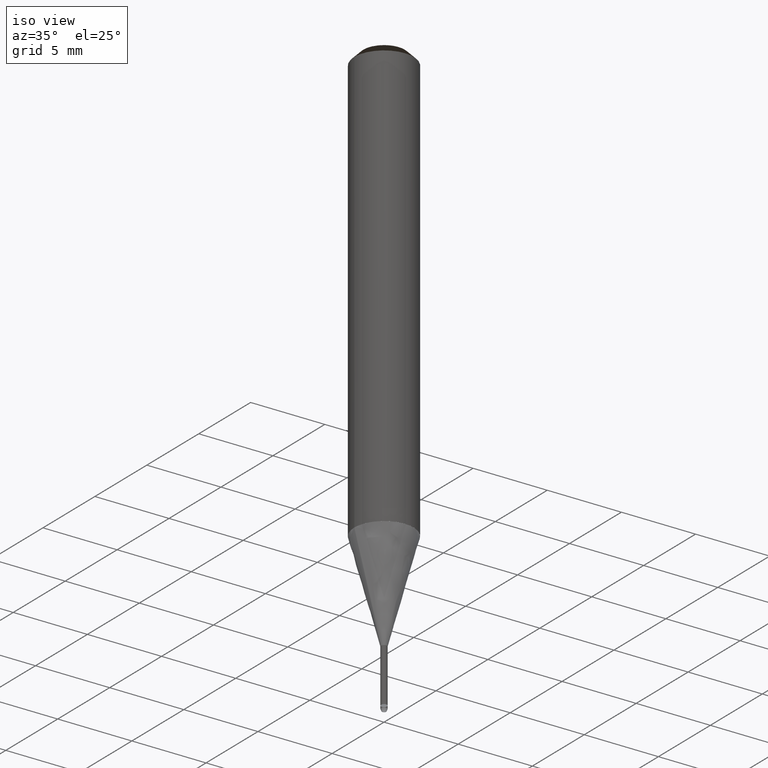
[diagram: clean part render]
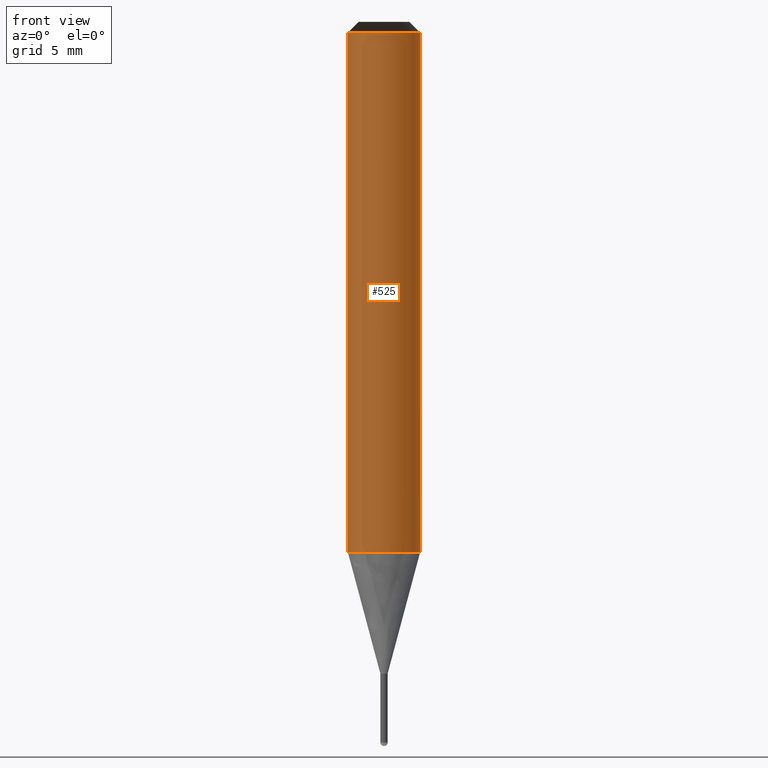
[diagram: tour spotlight — one face highlighted and labeled with its STEP entity id]
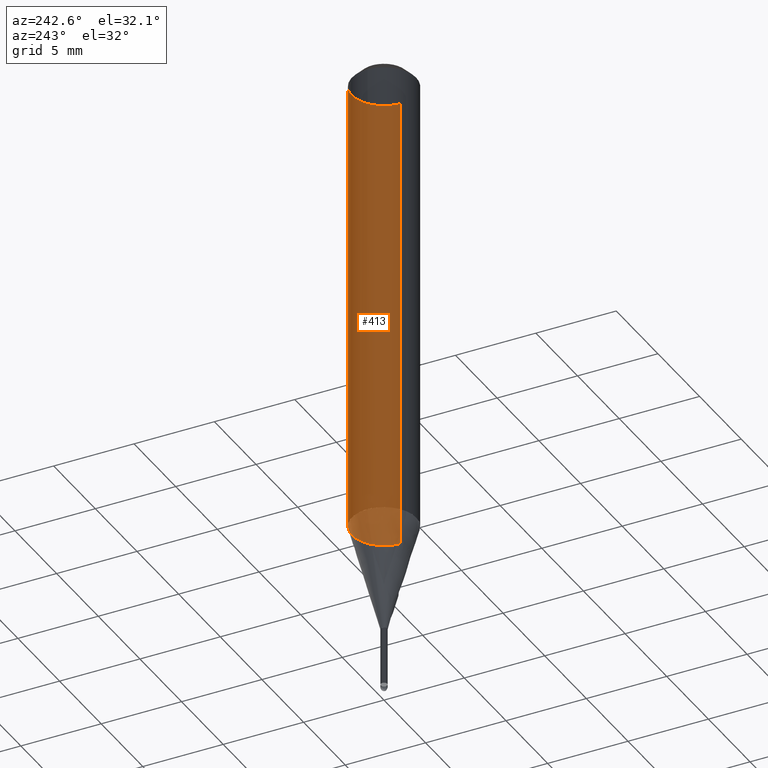
[diagram: tour spotlight — one face highlighted and labeled with its STEP entity id]
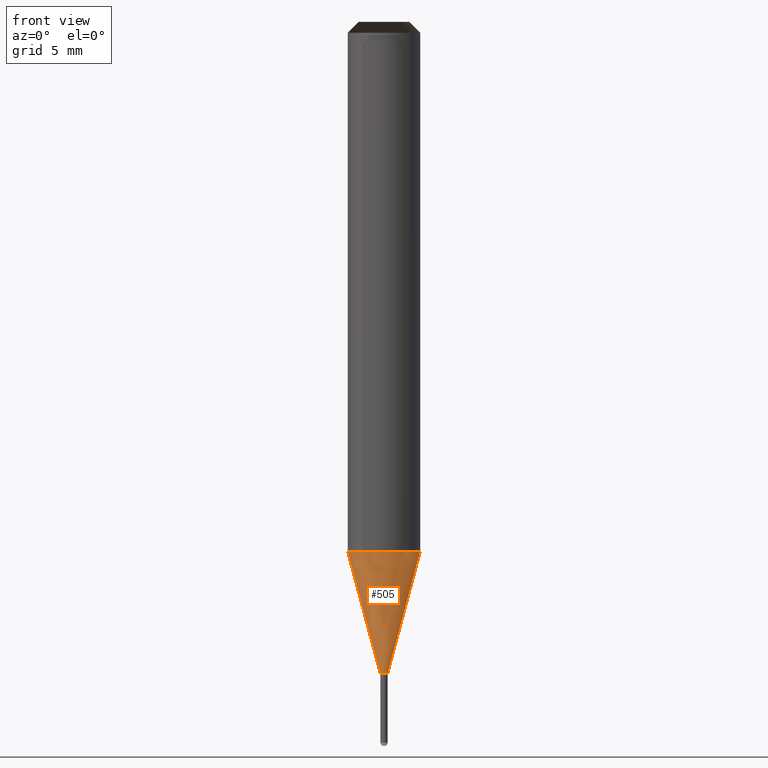
[diagram: tour spotlight — one face highlighted and labeled with its STEP entity id]
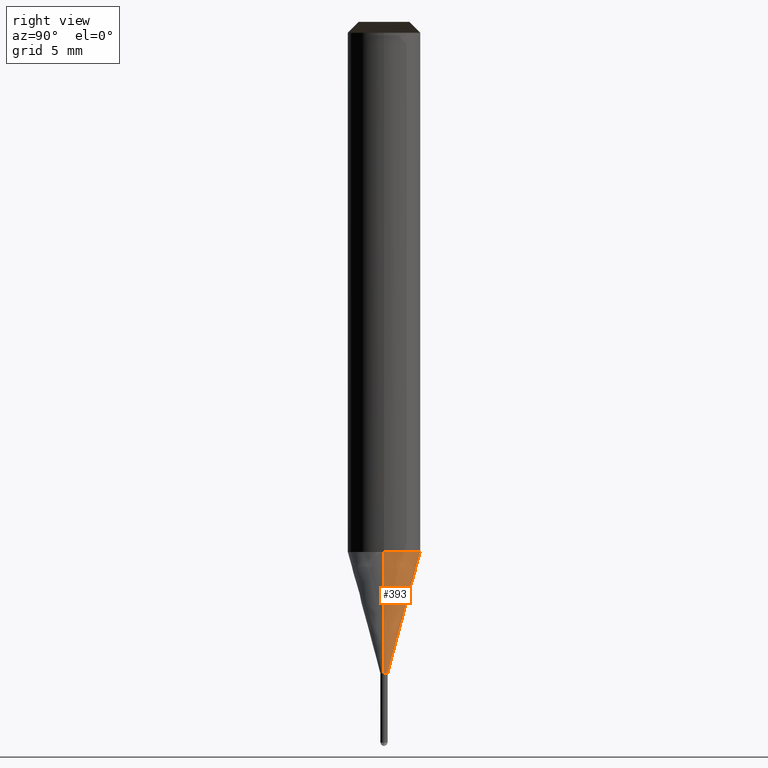
[diagram: tour spotlight — one face highlighted and labeled with its STEP entity id]
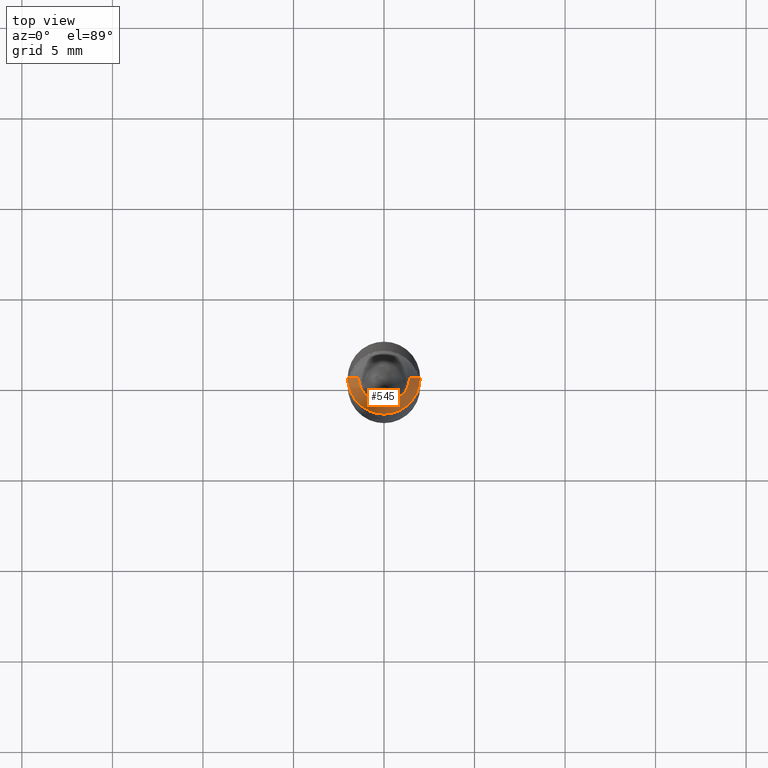
[diagram: tour spotlight — one face highlighted and labeled with its STEP entity id]
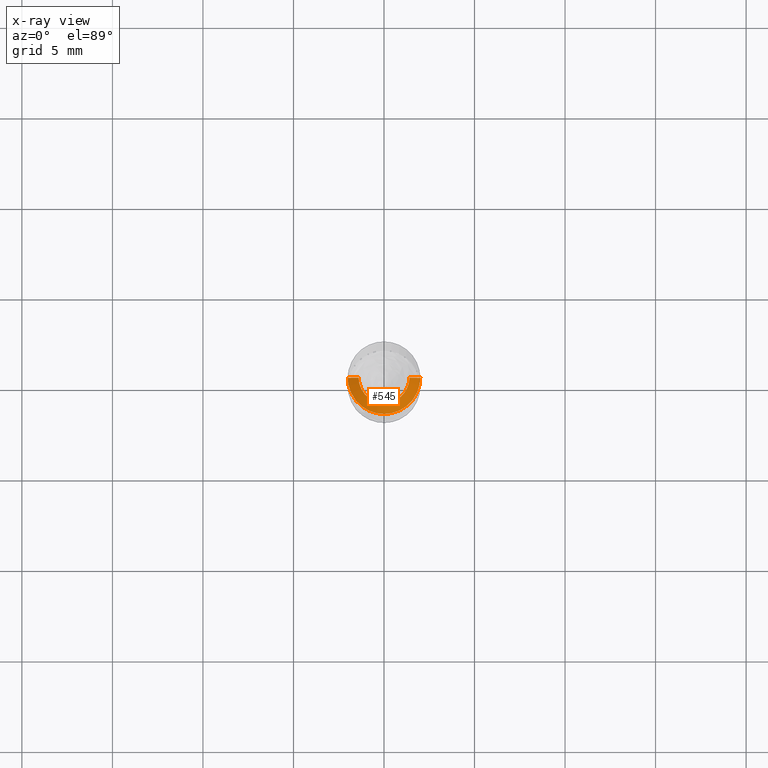
[diagram: x-ray of the same camera — body ghosted, this tour face saturated]
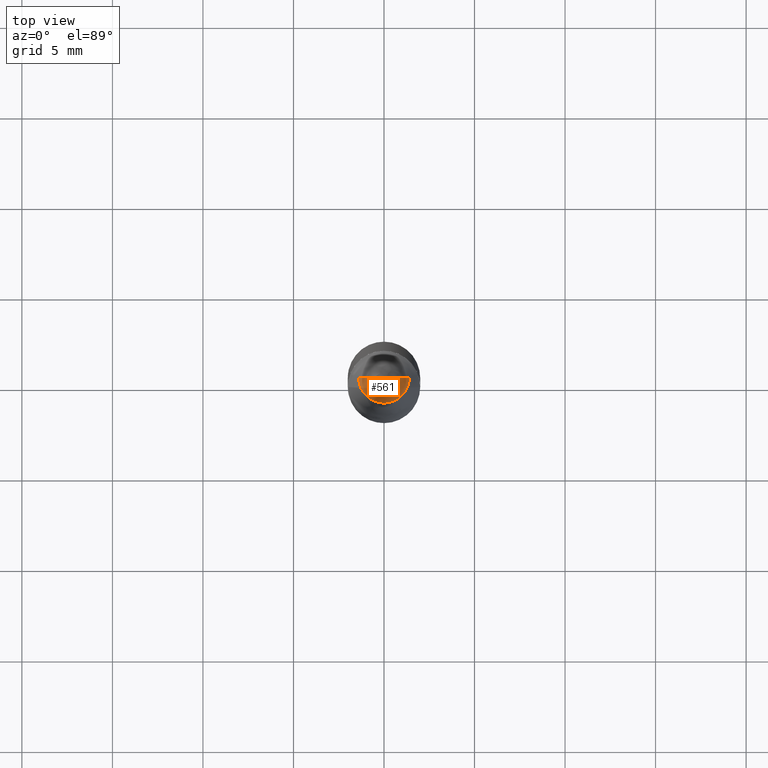
[diagram: tour spotlight — one face highlighted and labeled with its STEP entity id]
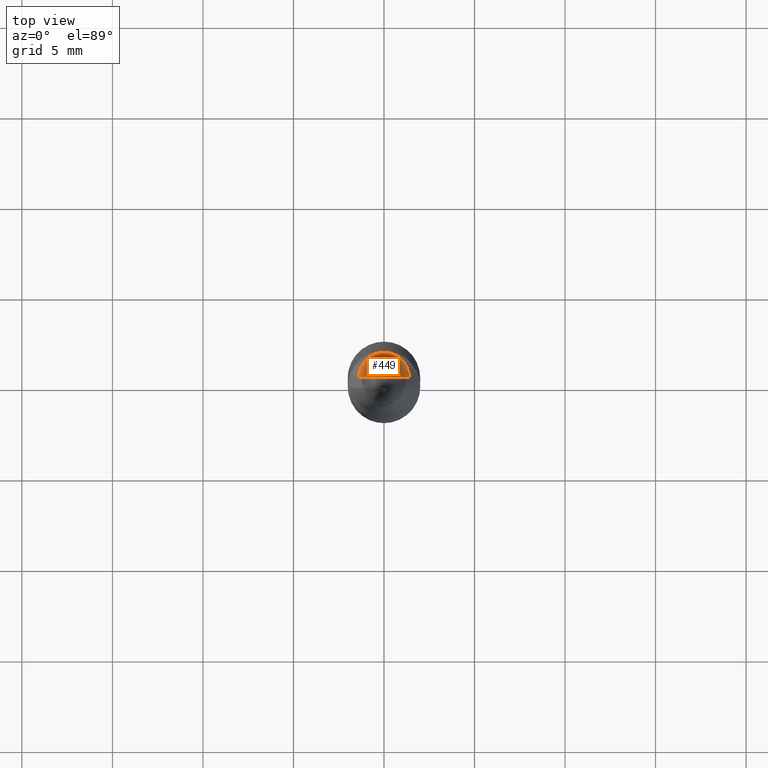
[diagram: tour spotlight — one face highlighted and labeled with its STEP entity id]
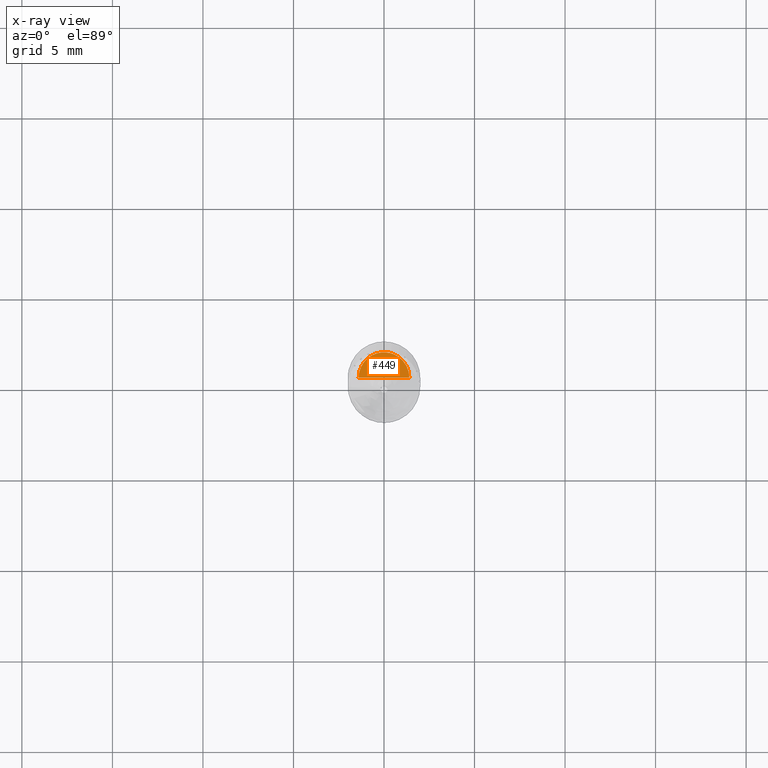
[diagram: x-ray of the same camera — body ghosted, this tour face saturated]
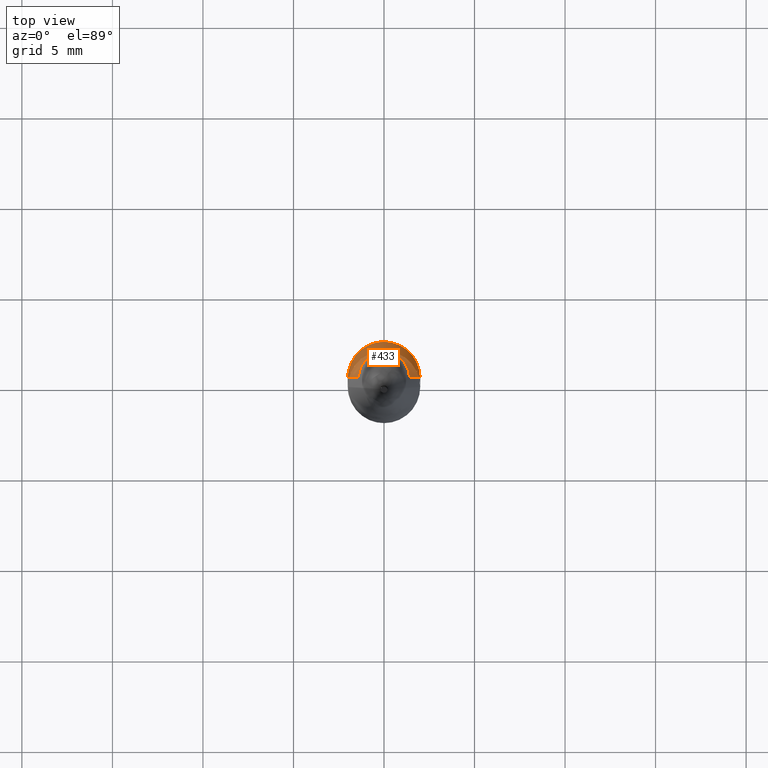
[diagram: tour spotlight — one face highlighted and labeled with its STEP entity id]
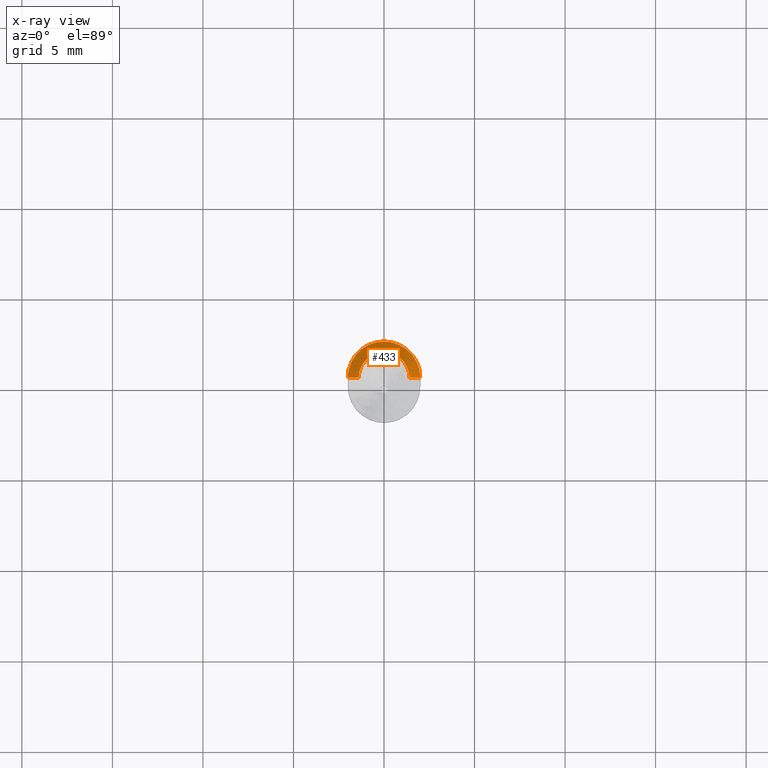
[diagram: x-ray of the same camera — body ghosted, this tour face saturated]
A machine part: a face-by-face anatomy tour. The part has 18 B-rep faces; the first image is the clean iso view, then the 8 largest visible faces are spotlighted one at a time (largest first), each with its STEP entity span.

Face 1 — front view, entity #525. In plain terms, the highlighted face is a freeform B-spline surface patch.
Definition (entity closure, byte-faithful):
#197=CARTESIAN_POINT('',(2.0,0.0,0.0));
#201=CARTESIAN_POINT('',(-2.0,0.0,0.0));
#202=CARTESIAN_POINT('',(2.0,0.0,28.68));
#206=CARTESIAN_POINT('',(-2.0,0.0,28.68));
#216=CARTESIAN_POINT('',(-2.0,-2.0,0.0));
#217=CARTESIAN_POINT('',(0.0,-2.0,0.0));
#218=CARTESIAN_POINT('',(2.0,-2.0,0.0));
#219=CARTESIAN_POINT('',(-2.0,-2.0,28.68));
#220=CARTESIAN_POINT('',(0.0,-2.0,28.68));
#221=CARTESIAN_POINT('',(2.0,-2.0,28.68));
#506=(
BOUNDED_SURFACE()
B_SPLINE_SURFACE(1,2,(
(#201,#216,#217,#218,#197),
(#206,#219,#220,#221,#202)
), .UNSPECIFIED.,.F.,.F.,.F.)
B_SPLINE_SURFACE_WITH_KNOTS((2,2),(3,2,3),(
0.0,1.0),(
0.0,0.5,1.0), .UNSPECIFIED.)
GEOMETRIC_REPRESENTATION_ITEM()
RATIONAL_B_SPLINE_SURFACE(((1.0,0.707106781187,1.0,0.707106781187,1.0),
(1.0,0.707106781187,1.0,0.707106781187,1.0)
))
REPRESENTATION_ITEM('')
SURFACE()
);
#507=(
BOUNDED_CURVE()
B_SPLINE_CURVE(1,(#206,#201),.UNSPECIFIED.,.F.,.F.)
B_SPLINE_CURVE_WITH_KNOTS((2,2),
(0.0,1.0),.UNSPECIFIED.)
CURVE()
GEOMETRIC_REPRESENTATION_ITEM()
RATIONAL_B_SPLINE_CURVE((1.0,1.0))
REPRESENTATION_ITEM('')
);
#508=(
BOUNDED_CURVE()
B_SPLINE_CURVE(2,(#201,#216,#217,#218,#197),.UNSPECIFIED.,.F.,.F.)
B_SPLINE_CURVE_WITH_KNOTS((3,2,3),
(0.0,0.5,1.0),.UNSPECIFIED.)
CURVE()
GEOMETRIC_REPRESENTATION_ITEM()
RATIONAL_B_SPLINE_CURVE((1.0,0.707106781187,1.0,0.707106781187,1.0))
REPRESENTATION_ITEM('')
);
#509=(
BOUNDED_CURVE()
B_SPLINE_CURVE(1,(#197,#202),.UNSPECIFIED.,.F.,.F.)
B_SPLINE_CURVE_WITH_KNOTS((2,2),
(0.0,1.0),.UNSPECIFIED.)
CURVE()
GEOMETRIC_REPRESENTATION_ITEM()
RATIONAL_B_SPLINE_CURVE((1.0,1.0))
REPRESENTATION_ITEM('')
);
#510=(
BOUNDED_CURVE()
B_SPLINE_CURVE(2,(#202,#221,#220,#219,#206),.UNSPECIFIED.,.F.,.F.)
B_SPLINE_CURVE_WITH_KNOTS((3,2,3),
(0.0,0.5,1.0),.UNSPECIFIED.)
CURVE()
GEOMETRIC_REPRESENTATION_ITEM()
RATIONAL_B_SPLINE_CURVE((1.0,0.707106781187,1.0,0.707106781187,1.0))
REPRESENTATION_ITEM('')
);
#511=VERTEX_POINT('',#197);
#512=VERTEX_POINT('',#201);
#513=VERTEX_POINT('',#202);
#514=VERTEX_POINT('',#206);
#515=EDGE_CURVE('',#514,#512,#507,.T.);
#516=EDGE_CURVE('',#512,#511,#508,.T.);
#517=EDGE_CURVE('',#511,#513,#509,.T.);
#518=EDGE_CURVE('',#513,#514,#510,.T.);
#519=ORIENTED_EDGE('',*,*,#515,.T.);
#520=ORIENTED_EDGE('',*,*,#516,.T.);
#521=ORIENTED_EDGE('',*,*,#517,.T.);
#522=ORIENTED_EDGE('',*,*,#518,.T.);
#523=EDGE_LOOP('',(#519,#520,#521,#522));
#524=FACE_OUTER_BOUND('',#523,.T.);
#525=ADVANCED_FACE('',(#524),#506,.T.);

Face 2 — auxiliary view, entity #413. In plain terms, the highlighted face is a freeform B-spline surface patch.
Definition (entity closure, byte-faithful):
#197=CARTESIAN_POINT('',(2.0,0.0,0.0));
#198=CARTESIAN_POINT('',(2.0,2.0,0.0));
#199=CARTESIAN_POINT('',(0.0,2.0,0.0));
#200=CARTESIAN_POINT('',(-2.0,2.0,0.0));
#201=CARTESIAN_POINT('',(-2.0,0.0,0.0));
#202=CARTESIAN_POINT('',(2.0,0.0,28.68));
#203=CARTESIAN_POINT('',(2.0,2.0,28.68));
#204=CARTESIAN_POINT('',(0.0,2.0,28.68));
#205=CARTESIAN_POINT('',(-2.0,2.0,28.68));
#206=CARTESIAN_POINT('',(-2.0,0.0,28.68));
#394=(
BOUNDED_SURFACE()
B_SPLINE_SURFACE(1,2,(
(#197,#198,#199,#200,#201),
(#202,#203,#204,#205,#206)
), .UNSPECIFIED.,.F.,.F.,.F.)
B_SPLINE_SURFACE_WITH_KNOTS((2,2),(3,2,3),(
0.0,1.0),(
0.0,0.5,1.0), .UNSPECIFIED.)
GEOMETRIC_REPRESENTATION_ITEM()
RATIONAL_B_SPLINE_SURFACE(((1.0,0.707106781187,1.0,0.707106781187,1.0),
(1.0,0.707106781187,1.0,0.707106781187,1.0)
))
REPRESENTATION_ITEM('')
SURFACE()
);
#395=(
BOUNDED_CURVE()
B_SPLINE_CURVE(2,(#202,#203,#204,#205,#206),.UNSPECIFIED.,.F.,.F.)
B_SPLINE_CURVE_WITH_KNOTS((3,2,3),
(0.0,0.5,1.0),.UNSPECIFIED.)
CURVE()
GEOMETRIC_REPRESENTATION_ITEM()
RATIONAL_B_SPLINE_CURVE((1.0,0.707106781187,1.0,0.707106781187,1.0))
REPRESENTATION_ITEM('')
);
#396=(
BOUNDED_CURVE()
B_SPLINE_CURVE(1,(#206,#201),.UNSPECIFIED.,.F.,.F.)
B_SPLINE_CURVE_WITH_KNOTS((2,2),
(0.0,1.0),.UNSPECIFIED.)
CURVE()
GEOMETRIC_REPRESENTATION_ITEM()
RATIONAL_B_SPLINE_CURVE((1.0,1.0))
REPRESENTATION_ITEM('')
);
#397=(
BOUNDED_CURVE()
B_SPLINE_CURVE(2,(#201,#200,#199,#198,#197),.UNSPECIFIED.,.F.,.F.)
B_SPLINE_CURVE_WITH_KNOTS((3,2,3),
(0.0,0.5,1.0),.UNSPECIFIED.)
CURVE()
GEOMETRIC_REPRESENTATION_ITEM()
RATIONAL_B_SPLINE_CURVE((1.0,0.707106781187,1.0,0.707106781187,1.0))
REPRESENTATION_ITEM('')
);
#398=(
BOUNDED_CURVE()
B_SPLINE_CURVE(1,(#197,#202),.UNSPECIFIED.,.F.,.F.)
B_SPLINE_CURVE_WITH_KNOTS((2,2),
(0.0,1.0),.UNSPECIFIED.)
CURVE()
GEOMETRIC_REPRESENTATION_ITEM()
RATIONAL_B_SPLINE_CURVE((1.0,1.0))
REPRESENTATION_ITEM('')
);
#399=VERTEX_POINT('',#197);
#400=VERTEX_POINT('',#201);
#401=VERTEX_POINT('',#202);
#402=VERTEX_POINT('',#206);
#403=EDGE_CURVE('',#401,#402,#395,.T.);
#404=EDGE_CURVE('',#402,#400,#396,.T.);
#405=EDGE_CURVE('',#400,#399,#397,.T.);
#406=EDGE_CURVE('',#399,#401,#398,.T.);
#407=ORIENTED_EDGE('',*,*,#403,.T.);
#408=ORIENTED_EDGE('',*,*,#404,.T.);
#409=ORIENTED_EDGE('',*,*,#405,.T.);
#410=ORIENTED_EDGE('',*,*,#406,.T.);
#411=EDGE_LOOP('',(#407,#408,#409,#410));
#412=FACE_OUTER_BOUND('',#411,.T.);
#413=ADVANCED_FACE('',(#412),#394,.T.);

Face 3 — front view, entity #505. In plain terms, the highlighted face is a freeform B-spline surface patch.
Definition (entity closure, byte-faithful):
#192=CARTESIAN_POINT('',(0.2,0.0,-6.717691453624));
#196=CARTESIAN_POINT('',(-0.2,0.0,-6.717691453624));
#197=CARTESIAN_POINT('',(2.0,0.0,0.0));
#201=CARTESIAN_POINT('',(-2.0,0.0,0.0));
#213=CARTESIAN_POINT('',(-0.2,-0.2,-6.717691453624));
#214=CARTESIAN_POINT('',(0.0,-0.2,-6.717691453624));
#215=CARTESIAN_POINT('',(0.2,-0.2,-6.717691453624));
#216=CARTESIAN_POINT('',(-2.0,-2.0,0.0));
#217=CARTESIAN_POINT('',(0.0,-2.0,0.0));
#218=CARTESIAN_POINT('',(2.0,-2.0,0.0));
#486=(
BOUNDED_SURFACE()
B_SPLINE_SURFACE(1,2,(
(#196,#213,#214,#215,#192),
(#201,#216,#217,#218,#197)
), .UNSPECIFIED.,.F.,.F.,.F.)
B_SPLINE_SURFACE_WITH_KNOTS((2,2),(3,2,3),(
0.0,1.0),(
0.0,0.5,1.0), .UNSPECIFIED.)
GEOMETRIC_REPRESENTATION_ITEM()
RATIONAL_B_SPLINE_SURFACE(((1.0,0.707106781187,1.0,0.707106781187,1.0),
(1.0,0.707106781187,1.0,0.707106781187,1.0)
))
REPRESENTATION_ITEM('')
SURFACE()
);
#487=(
BOUNDED_CURVE()
B_SPLINE_CURVE(1,(#201,#196),.UNSPECIFIED.,.F.,.F.)
B_SPLINE_CURVE_WITH_KNOTS((2,2),
(0.0,1.0),.UNSPECIFIED.)
CURVE()
GEOMETRIC_REPRESENTATION_ITEM()
RATIONAL_B_SPLINE_CURVE((1.0,1.0))
REPRESENTATION_ITEM('')
);
#488=(
BOUNDED_CURVE()
B_SPLINE_CURVE(2,(#196,#213,#214,#215,#192),.UNSPECIFIED.,.F.,.F.)
B_SPLINE_CURVE_WITH_KNOTS((3,2,3),
(0.0,0.5,1.0),.UNSPECIFIED.)
CURVE()
GEOMETRIC_REPRESENTATION_ITEM()
RATIONAL_B_SPLINE_CURVE((1.0,0.707106781187,1.0,0.707106781187,1.0))
REPRESENTATION_ITEM('')
);
#489=(
BOUNDED_CURVE()
B_SPLINE_CURVE(1,(#192,#197),.UNSPECIFIED.,.F.,.F.)
B_SPLINE_CURVE_WITH_KNOTS((2,2),
(0.0,1.0),.UNSPECIFIED.)
CURVE()
GEOMETRIC_REPRESENTATION_ITEM()
RATIONAL_B_SPLINE_CURVE((1.0,1.0))
REPRESENTATION_ITEM('')
);
#490=(
BOUNDED_CURVE()
B_SPLINE_CURVE(2,(#197,#218,#217,#216,#201),.UNSPECIFIED.,.F.,.F.)
B_SPLINE_CURVE_WITH_KNOTS((3,2,3),
(0.0,0.5,1.0),.UNSPECIFIED.)
CURVE()
GEOMETRIC_REPRESENTATION_ITEM()
RATIONAL_B_SPLINE_CURVE((1.0,0.707106781187,1.0,0.707106781187,1.0))
REPRESENTATION_ITEM('')
);
#491=VERTEX_POINT('',#192);
#492=VERTEX_POINT('',#196);
#493=VERTEX_POINT('',#197);
#494=VERTEX_POINT('',#201);
#495=EDGE_CURVE('',#494,#492,#487,.T.);
#496=EDGE_CURVE('',#492,#491,#488,.T.);
#497=EDGE_CURVE('',#491,#493,#489,.T.);
#498=EDGE_CURVE('',#493,#494,#490,.T.);
#499=ORIENTED_EDGE('',*,*,#495,.T.);
#500=ORIENTED_EDGE('',*,*,#496,.T.);
#501=ORIENTED_EDGE('',*,*,#497,.T.);
#502=ORIENTED_EDGE('',*,*,#498,.T.);
#503=EDGE_LOOP('',(#499,#500,#501,#502));
#504=FACE_OUTER_BOUND('',#503,.T.);
#505=ADVANCED_FACE('',(#504),#486,.T.);

Face 4 — right view, entity #393. In plain terms, the highlighted face is a freeform B-spline surface patch.
Definition (entity closure, byte-faithful):
#192=CARTESIAN_POINT('',(0.2,0.0,-6.717691453624));
#193=CARTESIAN_POINT('',(0.2,0.2,-6.717691453624));
#194=CARTESIAN_POINT('',(0.0,0.2,-6.717691453624));
#195=CARTESIAN_POINT('',(-0.2,0.2,-6.717691453624));
#196=CARTESIAN_POINT('',(-0.2,0.0,-6.717691453624));
#197=CARTESIAN_POINT('',(2.0,0.0,0.0));
#198=CARTESIAN_POINT('',(2.0,2.0,0.0));
#199=CARTESIAN_POINT('',(0.0,2.0,0.0));
#200=CARTESIAN_POINT('',(-2.0,2.0,0.0));
#201=CARTESIAN_POINT('',(-2.0,0.0,0.0));
#374=(
BOUNDED_SURFACE()
B_SPLINE_SURFACE(1,2,(
(#192,#193,#194,#195,#196),
(#197,#198,#199,#200,#201)
), .UNSPECIFIED.,.F.,.F.,.F.)
B_SPLINE_SURFACE_WITH_KNOTS((2,2),(3,2,3),(
0.0,1.0),(
0.0,0.5,1.0), .UNSPECIFIED.)
GEOMETRIC_REPRESENTATION_ITEM()
RATIONAL_B_SPLINE_SURFACE(((1.0,0.707106781187,1.0,0.707106781187,1.0),
(1.0,0.707106781187,1.0,0.707106781187,1.0)
))
REPRESENTATION_ITEM('')
SURFACE()
);
#375=(
BOUNDED_CURVE()
B_SPLINE_CURVE(2,(#197,#198,#199,#200,#201),.UNSPECIFIED.,.F.,.F.)
B_SPLINE_CURVE_WITH_KNOTS((3,2,3),
(0.0,0.5,1.0),.UNSPECIFIED.)
CURVE()
GEOMETRIC_REPRESENTATION_ITEM()
RATIONAL_B_SPLINE_CURVE((1.0,0.707106781187,1.0,0.707106781187,1.0))
REPRESENTATION_ITEM('')
);
#376=(
BOUNDED_CURVE()
B_SPLINE_CURVE(1,(#201,#196),.UNSPECIFIED.,.F.,.F.)
B_SPLINE_CURVE_WITH_KNOTS((2,2),
(0.0,1.0),.UNSPECIFIED.)
CURVE()
GEOMETRIC_REPRESENTATION_ITEM()
RATIONAL_B_SPLINE_CURVE((1.0,1.0))
REPRESENTATION_ITEM('')
);
#377=(
BOUNDED_CURVE()
B_SPLINE_CURVE(2,(#196,#195,#194,#193,#192),.UNSPECIFIED.,.F.,.F.)
B_SPLINE_CURVE_WITH_KNOTS((3,2,3),
(0.0,0.5,1.0),.UNSPECIFIED.)
CURVE()
GEOMETRIC_REPRESENTATION_ITEM()
RATIONAL_B_SPLINE_CURVE((1.0,0.707106781187,1.0,0.707106781187,1.0))
REPRESENTATION_ITEM('')
);
#378=(
BOUNDED_CURVE()
B_SPLINE_CURVE(1,(#192,#197),.UNSPECIFIED.,.F.,.F.)
B_SPLINE_CURVE_WITH_KNOTS((2,2),
(0.0,1.0),.UNSPECIFIED.)
CURVE()
GEOMETRIC_REPRESENTATION_ITEM()
RATIONAL_B_SPLINE_CURVE((1.0,1.0))
REPRESENTATION_ITEM('')
);
#379=VERTEX_POINT('',#192);
#380=VERTEX_POINT('',#196);
#381=VERTEX_POINT('',#197);
#382=VERTEX_POINT('',#201);
#383=EDGE_CURVE('',#381,#382,#375,.T.);
#384=EDGE_CURVE('',#382,#380,#376,.T.);
#385=EDGE_CURVE('',#380,#379,#377,.T.);
#386=EDGE_CURVE('',#379,#381,#378,.T.);
#387=ORIENTED_EDGE('',*,*,#383,.T.);
#388=ORIENTED_EDGE('',*,*,#384,.T.);
#389=ORIENTED_EDGE('',*,*,#385,.T.);
#390=ORIENTED_EDGE('',*,*,#386,.T.);
#391=EDGE_LOOP('',(#387,#388,#389,#390));
#392=FACE_OUTER_BOUND('',#391,.T.);
#393=ADVANCED_FACE('',(#392),#374,.T.);

Face 5 — top view, entity #545. An x-ray twin of the same camera follows (body ghosted, this face saturated) — the face is partly hidden behind the body. In plain terms, the highlighted face is a freeform B-spline surface patch.
Definition (entity closure, byte-faithful):
#202=CARTESIAN_POINT('',(2.0,0.0,28.68));
#206=CARTESIAN_POINT('',(-2.0,0.0,28.68));
#207=CARTESIAN_POINT('',(1.4,0.0,29.28));
#211=CARTESIAN_POINT('',(-1.4,0.0,29.28));
#219=CARTESIAN_POINT('',(-2.0,-2.0,28.68));
#220=CARTESIAN_POINT('',(0.0,-2.0,28.68));
#221=CARTESIAN_POINT('',(2.0,-2.0,28.68));
#222=CARTESIAN_POINT('',(-1.4,-1.4,29.28));
#223=CARTESIAN_POINT('',(0.0,-1.4,29.28));
#224=CARTESIAN_POINT('',(1.4,-1.4,29.28));
#526=(
BOUNDED_SURFACE()
B_SPLINE_SURFACE(1,2,(
(#206,#219,#220,#221,#202),
(#211,#222,#223,#224,#207)
), .UNSPECIFIED.,.F.,.F.,.F.)
B_SPLINE_SURFACE_WITH_KNOTS((2,2),(3,2,3),(
0.0,1.0),(
0.0,0.5,1.0), .UNSPECIFIED.)
GEOMETRIC_REPRESENTATION_ITEM()
RATIONAL_B_SPLINE_SURFACE(((1.0,0.707106781187,1.0,0.707106781187,1.0),
(1.0,0.707106781187,1.0,0.707106781187,1.0)
))
REPRESENTATION_ITEM('')
SURFACE()
);
#527=(
BOUNDED_CURVE()
B_SPLINE_CURVE(2,(#211,#222,#223,#224,#207),.UNSPECIFIED.,.F.,.F.)
B_SPLINE_CURVE_WITH_KNOTS((3,2,3),
(0.0,0.5,1.0),.UNSPECIFIED.)
CURVE()
GEOMETRIC_REPRESENTATION_ITEM()
RATIONAL_B_SPLINE_CURVE((1.0,0.707106781187,1.0,0.707106781187,1.0))
REPRESENTATION_ITEM('')
);
#528=(
BOUNDED_CURVE()
B_SPLINE_CURVE(1,(#207,#202),.UNSPECIFIED.,.F.,.F.)
B_SPLINE_CURVE_WITH_KNOTS((2,2),
(0.0,1.0),.UNSPECIFIED.)
CURVE()
GEOMETRIC_REPRESENTATION_ITEM()
RATIONAL_B_SPLINE_CURVE((1.0,1.0))
REPRESENTATION_ITEM('')
);
#529=(
BOUNDED_CURVE()
B_SPLINE_CURVE(2,(#202,#221,#220,#219,#206),.UNSPECIFIED.,.F.,.F.)
B_SPLINE_CURVE_WITH_KNOTS((3,2,3),
(0.0,0.5,1.0),.UNSPECIFIED.)
CURVE()
GEOMETRIC_REPRESENTATION_ITEM()
RATIONAL_B_SPLINE_CURVE((1.0,0.707106781187,1.0,0.707106781187,1.0))
REPRESENTATION_ITEM('')
);
#530=(
BOUNDED_CURVE()
B_SPLINE_CURVE(1,(#206,#211),.UNSPECIFIED.,.F.,.F.)
B_SPLINE_CURVE_WITH_KNOTS((2,2),
(0.0,1.0),.UNSPECIFIED.)
CURVE()
GEOMETRIC_REPRESENTATION_ITEM()
RATIONAL_B_SPLINE_CURVE((1.0,1.0))
REPRESENTATION_ITEM('')
);
#531=VERTEX_POINT('',#202);
#532=VERTEX_POINT('',#206);
#533=VERTEX_POINT('',#207);
#534=VERTEX_POINT('',#211);
#535=EDGE_CURVE('',#534,#533,#527,.T.);
#536=EDGE_CURVE('',#533,#531,#528,.T.);
#537=EDGE_CURVE('',#531,#532,#529,.T.);
#538=EDGE_CURVE('',#532,#534,#530,.T.);
#539=ORIENTED_EDGE('',*,*,#535,.T.);
#540=ORIENTED_EDGE('',*,*,#536,.T.);
#541=ORIENTED_EDGE('',*,*,#537,.T.);
#542=ORIENTED_EDGE('',*,*,#538,.T.);
#543=EDGE_LOOP('',(#539,#540,#541,#542));
#544=FACE_OUTER_BOUND('',#543,.T.);
#545=ADVANCED_FACE('',(#544),#526,.T.);

Face 6 — top view, entity #561. In plain terms, the highlighted face is a freeform B-spline surface patch.
Definition (entity closure, byte-faithful):
#207=CARTESIAN_POINT('',(1.4,0.0,29.28));
#211=CARTESIAN_POINT('',(-1.4,0.0,29.28));
#212=CARTESIAN_POINT('',(0.0,0.0,29.28));
#222=CARTESIAN_POINT('',(-1.4,-1.4,29.28));
#223=CARTESIAN_POINT('',(0.0,-1.4,29.28));
#224=CARTESIAN_POINT('',(1.4,-1.4,29.28));
#546=(
BOUNDED_SURFACE()
B_SPLINE_SURFACE(1,2,(
(#211,#222,#223,#224,#207),
(#212,#212,#212,#212,#212)
), .UNSPECIFIED.,.F.,.F.,.F.)
B_SPLINE_SURFACE_WITH_KNOTS((2,2),(3,2,3),(
0.0,1.0),(
0.0,0.5,1.0), .UNSPECIFIED.)
GEOMETRIC_REPRESENTATION_ITEM()
RATIONAL_B_SPLINE_SURFACE(((1.0,0.707106781187,1.0,0.707106781187,1.0),
(1.0,0.707106781187,1.0,0.707106781187,1.0)
))
REPRESENTATION_ITEM('')
SURFACE()
);
#547=(
BOUNDED_CURVE()
B_SPLINE_CURVE(1,(#212,#207),.UNSPECIFIED.,.F.,.F.)
B_SPLINE_CURVE_WITH_KNOTS((2,2),
(0.0,1.0),.UNSPECIFIED.)
CURVE()
GEOMETRIC_REPRESENTATION_ITEM()
RATIONAL_B_SPLINE_CURVE((1.0,1.0))
REPRESENTATION_ITEM('')
);
#548=(
BOUNDED_CURVE()
B_SPLINE_CURVE(2,(#207,#224,#223,#222,#211),.UNSPECIFIED.,.F.,.F.)
B_SPLINE_CURVE_WITH_KNOTS((3,2,3),
(0.0,0.5,1.0),.UNSPECIFIED.)
CURVE()
GEOMETRIC_REPRESENTATION_ITEM()
RATIONAL_B_SPLINE_CURVE((1.0,0.707106781187,1.0,0.707106781187,1.0))
REPRESENTATION_ITEM('')
);
#549=(
BOUNDED_CURVE()
B_SPLINE_CURVE(1,(#211,#212),.UNSPECIFIED.,.F.,.F.)
B_SPLINE_CURVE_WITH_KNOTS((2,2),
(0.0,1.0),.UNSPECIFIED.)
CURVE()
GEOMETRIC_REPRESENTATION_ITEM()
RATIONAL_B_SPLINE_CURVE((1.0,1.0))
REPRESENTATION_ITEM('')
);
#550=VERTEX_POINT('',#207);
#551=VERTEX_POINT('',#211);
#552=VERTEX_POINT('',#212);
#553=EDGE_CURVE('',#552,#550,#547,.T.);
#554=EDGE_CURVE('',#550,#551,#548,.T.);
#555=EDGE_CURVE('',#551,#552,#549,.T.);
#556=ORIENTED_EDGE('',*,*,#553,.T.);
#557=ORIENTED_EDGE('',*,*,#554,.T.);
#558=ORIENTED_EDGE('',*,*,#555,.T.);
#559=EDGE_LOOP('',(#556,#557,#558));
#560=FACE_OUTER_BOUND('',#559,.T.);
#561=ADVANCED_FACE('',(#560),#546,.T.);

Face 7 — top view, entity #449. An x-ray twin of the same camera follows (body ghosted, this face saturated) — the face is partly hidden behind the body. In plain terms, the highlighted face is a freeform B-spline surface patch.
Definition (entity closure, byte-faithful):
#207=CARTESIAN_POINT('',(1.4,0.0,29.28));
#208=CARTESIAN_POINT('',(1.4,1.4,29.28));
#209=CARTESIAN_POINT('',(0.0,1.4,29.28));
#210=CARTESIAN_POINT('',(-1.4,1.4,29.28));
#211=CARTESIAN_POINT('',(-1.4,0.0,29.28));
#212=CARTESIAN_POINT('',(0.0,0.0,29.28));
#434=(
BOUNDED_SURFACE()
B_SPLINE_SURFACE(1,2,(
(#207,#208,#209,#210,#211),
(#212,#212,#212,#212,#212)
), .UNSPECIFIED.,.F.,.F.,.F.)
B_SPLINE_SURFACE_WITH_KNOTS((2,2),(3,2,3),(
0.0,1.0),(
0.0,0.5,1.0), .UNSPECIFIED.)
GEOMETRIC_REPRESENTATION_ITEM()
RATIONAL_B_SPLINE_SURFACE(((1.0,0.707106781187,1.0,0.707106781187,1.0),
(1.0,0.707106781187,1.0,0.707106781187,1.0)
))
REPRESENTATION_ITEM('')
SURFACE()
);
#435=(
BOUNDED_CURVE()
B_SPLINE_CURVE(1,(#212,#207),.UNSPECIFIED.,.F.,.F.)
B_SPLINE_CURVE_WITH_KNOTS((2,2),
(0.0,1.0),.UNSPECIFIED.)
CURVE()
GEOMETRIC_REPRESENTATION_ITEM()
RATIONAL_B_SPLINE_CURVE((1.0,1.0))
REPRESENTATION_ITEM('')
);
#436=(
BOUNDED_CURVE()
B_SPLINE_CURVE(2,(#207,#208,#209,#210,#211),.UNSPECIFIED.,.F.,.F.)
B_SPLINE_CURVE_WITH_KNOTS((3,2,3),
(0.0,0.5,1.0),.UNSPECIFIED.)
CURVE()
GEOMETRIC_REPRESENTATION_ITEM()
RATIONAL_B_SPLINE_CURVE((1.0,0.707106781187,1.0,0.707106781187,1.0))
REPRESENTATION_ITEM('')
);
#437=(
BOUNDED_CURVE()
B_SPLINE_CURVE(1,(#211,#212),.UNSPECIFIED.,.F.,.F.)
B_SPLINE_CURVE_WITH_KNOTS((2,2),
(0.0,1.0),.UNSPECIFIED.)
CURVE()
GEOMETRIC_REPRESENTATION_ITEM()
RATIONAL_B_SPLINE_CURVE((1.0,1.0))
REPRESENTATION_ITEM('')
);
#438=VERTEX_POINT('',#207);
#439=VERTEX_POINT('',#211);
#440=VERTEX_POINT('',#212);
#441=EDGE_CURVE('',#440,#438,#435,.T.);
#442=EDGE_CURVE('',#438,#439,#436,.T.);
#443=EDGE_CURVE('',#439,#440,#437,.T.);
#444=ORIENTED_EDGE('',*,*,#441,.T.);
#445=ORIENTED_EDGE('',*,*,#442,.T.);
#446=ORIENTED_EDGE('',*,*,#443,.T.);
#447=EDGE_LOOP('',(#444,#445,#446));
#448=FACE_OUTER_BOUND('',#447,.T.);
#449=ADVANCED_FACE('',(#448),#434,.T.);

Face 8 — top view, entity #433. An x-ray twin of the same camera follows (body ghosted, this face saturated) — the face is partly hidden behind the body. In plain terms, the highlighted face is a freeform B-spline surface patch.
Definition (entity closure, byte-faithful):
#202=CARTESIAN_POINT('',(2.0,0.0,28.68));
#203=CARTESIAN_POINT('',(2.0,2.0,28.68));
#204=CARTESIAN_POINT('',(0.0,2.0,28.68));
#205=CARTESIAN_POINT('',(-2.0,2.0,28.68));
#206=CARTESIAN_POINT('',(-2.0,0.0,28.68));
#207=CARTESIAN_POINT('',(1.4,0.0,29.28));
#208=CARTESIAN_POINT('',(1.4,1.4,29.28));
#209=CARTESIAN_POINT('',(0.0,1.4,29.28));
#210=CARTESIAN_POINT('',(-1.4,1.4,29.28));
#211=CARTESIAN_POINT('',(-1.4,0.0,29.28));
#414=(
BOUNDED_SURFACE()
B_SPLINE_SURFACE(1,2,(
(#202,#203,#204,#205,#206),
(#207,#208,#209,#210,#211)
), .UNSPECIFIED.,.F.,.F.,.F.)
B_SPLINE_SURFACE_WITH_KNOTS((2,2),(3,2,3),(
0.0,1.0),(
0.0,0.5,1.0), .UNSPECIFIED.)
GEOMETRIC_REPRESENTATION_ITEM()
RATIONAL_B_SPLINE_SURFACE(((1.0,0.707106781187,1.0,0.707106781187,1.0),
(1.0,0.707106781187,1.0,0.707106781187,1.0)
))
REPRESENTATION_ITEM('')
SURFACE()
);
#415=(
BOUNDED_CURVE()
B_SPLINE_CURVE(1,(#207,#202),.UNSPECIFIED.,.F.,.F.)
B_SPLINE_CURVE_WITH_KNOTS((2,2),
(0.0,1.0),.UNSPECIFIED.)
CURVE()
GEOMETRIC_REPRESENTATION_ITEM()
RATIONAL_B_SPLINE_CURVE((1.0,1.0))
REPRESENTATION_ITEM('')
);
#416=(
BOUNDED_CURVE()
B_SPLINE_CURVE(2,(#202,#203,#204,#205,#206),.UNSPECIFIED.,.F.,.F.)
B_SPLINE_CURVE_WITH_KNOTS((3,2,3),
(0.0,0.5,1.0),.UNSPECIFIED.)
CURVE()
GEOMETRIC_REPRESENTATION_ITEM()
RATIONAL_B_SPLINE_CURVE((1.0,0.707106781187,1.0,0.707106781187,1.0))
REPRESENTATION_ITEM('')
);
#417=(
BOUNDED_CURVE()
B_SPLINE_CURVE(1,(#206,#211),.UNSPECIFIED.,.F.,.F.)
B_SPLINE_CURVE_WITH_KNOTS((2,2),
(0.0,1.0),.UNSPECIFIED.)
CURVE()
GEOMETRIC_REPRESENTATION_ITEM()
RATIONAL_B_SPLINE_CURVE((1.0,1.0))
REPRESENTATION_ITEM('')
);
#418=(
BOUNDED_CURVE()
B_SPLINE_CURVE(2,(#211,#210,#209,#208,#207),.UNSPECIFIED.,.F.,.F.)
B_SPLINE_CURVE_WITH_KNOTS((3,2,3),
(0.0,0.5,1.0),.UNSPECIFIED.)
CURVE()
GEOMETRIC_REPRESENTATION_ITEM()
RATIONAL_B_SPLINE_CURVE((1.0,0.707106781187,1.0,0.707106781187,1.0))
REPRESENTATION_ITEM('')
);
#419=VERTEX_POINT('',#202);
#420=VERTEX_POINT('',#206);
#421=VERTEX_POINT('',#207);
#422=VERTEX_POINT('',#211);
#423=EDGE_CURVE('',#421,#419,#415,.T.);
#424=EDGE_CURVE('',#419,#420,#416,.T.);
#425=EDGE_CURVE('',#420,#422,#417,.T.);
#426=EDGE_CURVE('',#422,#421,#418,.T.);
#427=ORIENTED_EDGE('',*,*,#423,.T.);
#428=ORIENTED_EDGE('',*,*,#424,.T.);
#429=ORIENTED_EDGE('',*,*,#425,.T.);
#430=ORIENTED_EDGE('',*,*,#426,.T.);
#431=EDGE_LOOP('',(#427,#428,#429,#430));
#432=FACE_OUTER_BOUND('',#431,.T.);
#433=ADVANCED_FACE('',(#432),#414,.T.);